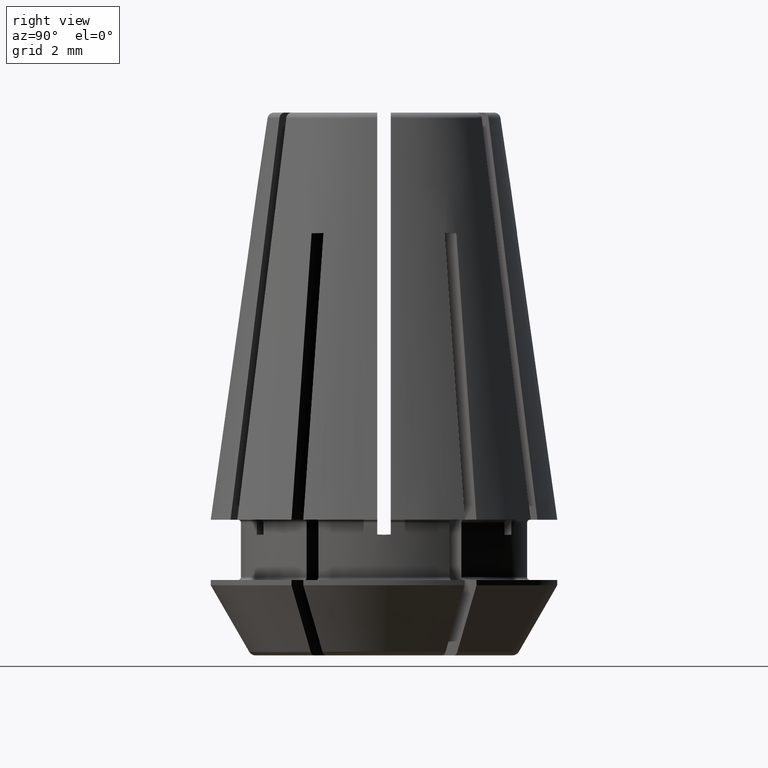
[diagram: clean part render]
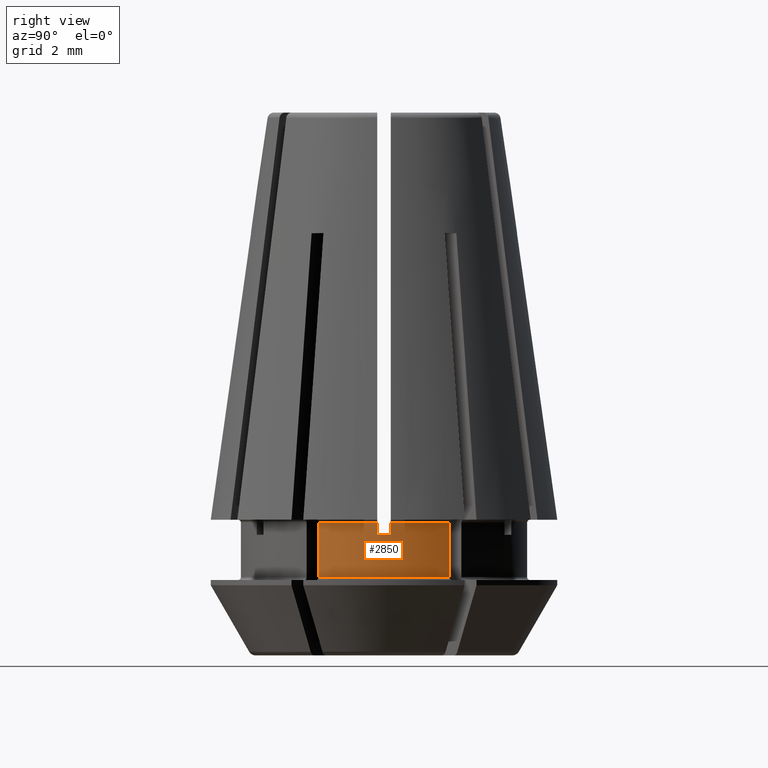
[diagram: same view with one face highlighted and labeled with its STEP entity id]
A machine part, right view. The second image highlights one B-rep face of the part: STEP entity #2850.
In plain terms, the highlighted cylindrical surface (partial cylindrical patch) has radius 4.75 mm, axis along (0, 0, -1).
Its self-contained STEP definition (entity closure, byte-faithful):
#41=CYLINDRICAL_SURFACE('',#3103,4.75);
#80=LINE('',#4384,#248);
#141=LINE('',#4739,#309);
#157=LINE('',#4855,#325);
#158=LINE('',#4858,#326);
#248=VECTOR('',#3403,1000.);
#309=VECTOR('',#3592,1000.);
#325=VECTOR('',#3658,1000.);
#326=VECTOR('',#3661,1000.);
#471=CIRCLE('',#2956,4.75);
#542=CIRCLE('',#3085,4.75);
#554=CIRCLE('',#3104,4.75);
#555=CIRCLE('',#3105,4.75);
#927=ORIENTED_EDGE('',*,*,#1625,.T.);
#928=ORIENTED_EDGE('',*,*,#1784,.F.);
#929=ORIENTED_EDGE('',*,*,#1785,.F.);
#930=ORIENTED_EDGE('',*,*,#1761,.T.);
#931=ORIENTED_EDGE('',*,*,#1745,.T.);
#932=ORIENTED_EDGE('',*,*,#1786,.F.);
#933=ORIENTED_EDGE('',*,*,#1787,.F.);
#934=ORIENTED_EDGE('',*,*,#1540,.T.);
#1540=EDGE_CURVE('',#1997,#1995,#471,.T.);
#1625=EDGE_CURVE('',#1995,#2076,#80,.T.);
#1745=EDGE_CURVE('',#2164,#2165,#141,.T.);
#1761=EDGE_CURVE('',#2177,#2164,#542,.T.);
#1784=EDGE_CURVE('',#2196,#2076,#554,.T.);
#1785=EDGE_CURVE('',#2177,#2196,#157,.T.);
#1786=EDGE_CURVE('',#2197,#2165,#555,.T.);
#1787=EDGE_CURVE('',#1997,#2197,#158,.T.);
#1995=VERTEX_POINT('',#4070);
#1997=VERTEX_POINT('',#4073);
#2076=VERTEX_POINT('',#4383);
#2164=VERTEX_POINT('',#4740);
#2165=VERTEX_POINT('',#4741);
#2177=VERTEX_POINT('',#4795);
#2196=VERTEX_POINT('',#4854);
#2197=VERTEX_POINT('',#4857);
#2492=EDGE_LOOP('',(#927,#928,#929,#930,#931,#932,#933,#934));
#2650=FACE_BOUND('',#2492,.T.);
#2850=ADVANCED_FACE('',(#2650),#41,.T.);
#2956=AXIS2_PLACEMENT_3D('',#4072,#3272,#3273);
#3085=AXIS2_PLACEMENT_3D('',#4796,#3610,#3611);
#3103=AXIS2_PLACEMENT_3D('',#4852,#3654,#3655);
#3104=AXIS2_PLACEMENT_3D('',#4853,#3656,#3657);
#3105=AXIS2_PLACEMENT_3D('',#4856,#3659,#3660);
#3272=DIRECTION('',(0.,0.,1.));
#3273=DIRECTION('',(1.,0.,0.));
#3403=DIRECTION('',(0.,0.,1.));
#3592=DIRECTION('',(0.,0.,1.));
#3610=DIRECTION('',(0.,0.,-1.));
#3611=DIRECTION('',(-1.,0.,0.));
#3654=DIRECTION('',(0.,0.,-1.));
#3655=DIRECTION('',(1.,0.,0.));
#3656=DIRECTION('',(0.,0.,1.));
#3657=DIRECTION('',(1.,0.,0.));
#3658=DIRECTION('',(0.,0.,1.));
#3659=DIRECTION('',(0.,0.,1.));
#3660=DIRECTION('',(1.,0.,0.));
#3661=DIRECTION('',(0.,0.,1.));
#4070=CARTESIAN_POINT('',(4.22150307252258,2.17747831417041,-1.9));
#4072=CARTESIAN_POINT('',(0.,0.,-1.9));
#4073=CARTESIAN_POINT('',(4.22150307252258,-2.1774783141704,-1.9));
#4383=CARTESIAN_POINT('',(4.22150307252258,2.17747831417041,-0.100000000000003));
#4384=CARTESIAN_POINT('',(4.22150307252258,2.17747831417041,60.));
#4739=CARTESIAN_POINT('',(4.74466806004382,-0.225,60.));
#4740=CARTESIAN_POINT('',(4.74466806004382,-0.225,-0.5));
#4741=CARTESIAN_POINT('',(4.74466806004382,-0.225,-0.100000000000003));
#4795=CARTESIAN_POINT('',(4.74466806004382,0.225,-0.5));
#4796=CARTESIAN_POINT('',(0.,0.,-0.5));
#4852=CARTESIAN_POINT('',(0.,0.,60.));
#4853=CARTESIAN_POINT('',(0.,0.,-0.100000000000003));
#4854=CARTESIAN_POINT('',(4.74466806004382,0.225,-0.100000000000003));
#4855=CARTESIAN_POINT('',(4.74466806004382,0.225,60.));
#4856=CARTESIAN_POINT('',(0.,0.,-0.100000000000003));
#4857=CARTESIAN_POINT('',(4.22150307252258,-2.1774783141704,-0.100000000000003));
#4858=CARTESIAN_POINT('',(4.22150307252258,-2.17747831417041,60.));